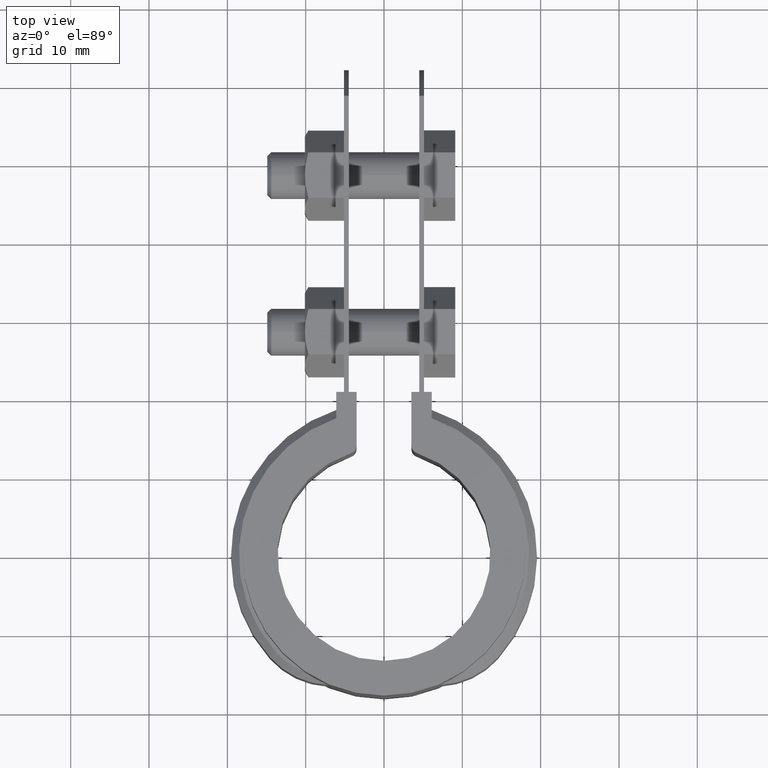
[diagram: clean part render]
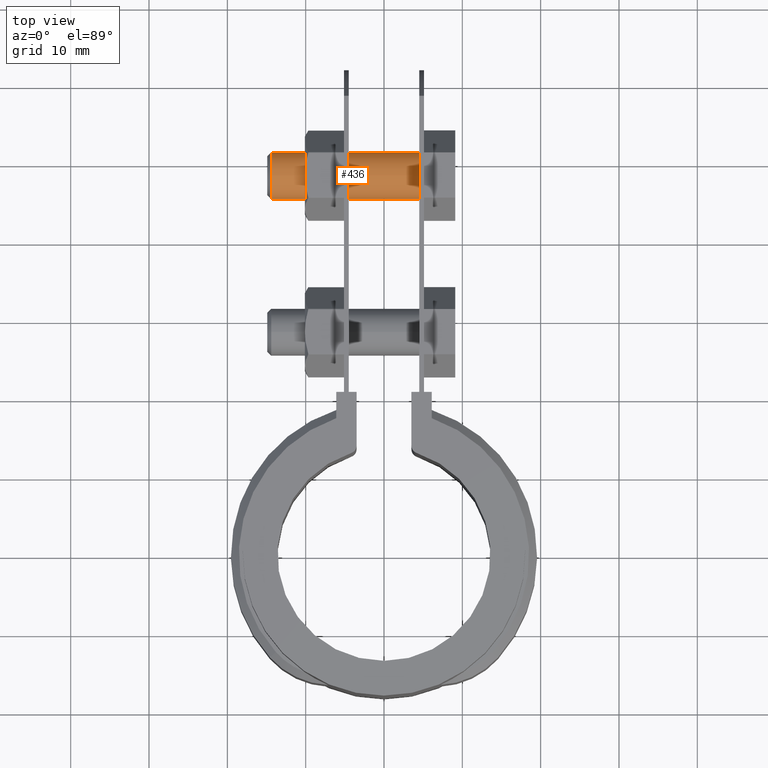
[diagram: same view with one face highlighted and labeled with its STEP entity id]
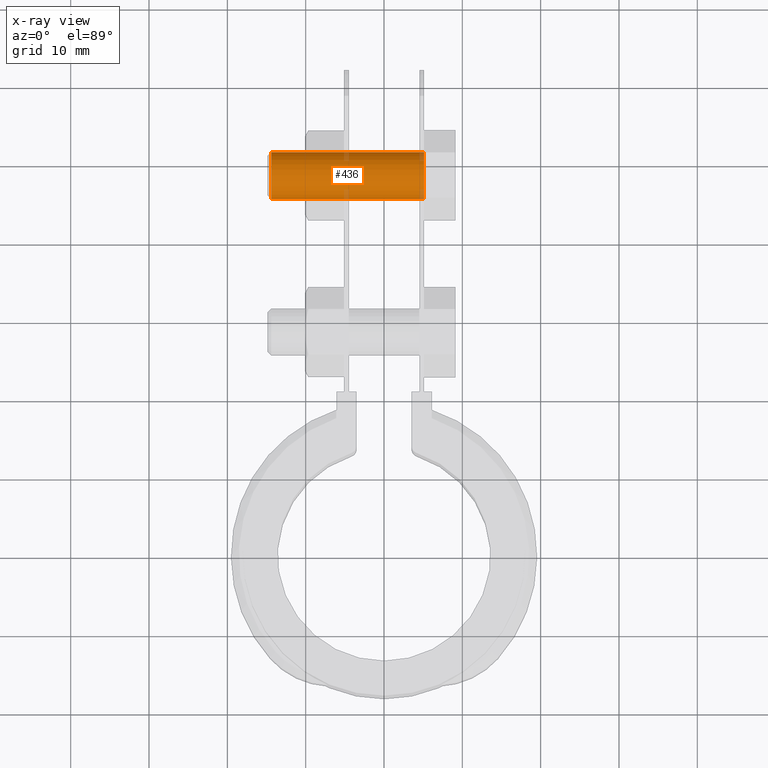
[diagram: x-ray of the same camera — body ghosted, the highlighted face saturated]
A machine part, top view. The second image highlights one B-rep face of the part: STEP entity #436.
The next image is the same camera in x-ray: the body ghosted, the highlighted face saturated — about 2% of this face is hidden behind the body in this view.
In plain terms, the highlighted cylindrical surface (bore or boss wall) has radius 3 mm, axis along (1, 0, 0).
Its self-contained STEP definition (entity closure, byte-faithful):
#436 = ADVANCED_FACE( '', ( #759, #760 ), #761, .T. );
#759 = FACE_OUTER_BOUND( '', #1545, .T. );
#760 = FACE_OUTER_BOUND( '', #1546, .T. );
#761 = CYLINDRICAL_SURFACE( '', #1547, 2.99999999999938 );
#1545 = EDGE_LOOP( '', ( #3356 ) );
#1546 = EDGE_LOOP( '', ( #3357 ) );
#1547 = AXIS2_PLACEMENT_3D( '', #3358, #3359, #3360 );
#3356 = ORIENTED_EDGE( '', *, *, #4186, .T. );
#3357 = ORIENTED_EDGE( '', *, *, #4180, .F. );
#3358 = CARTESIAN_POINT( '', ( 13.5487843911323, 48.5992907623043, -12.5000000000000 ) );
#3359 = DIRECTION( '', ( 1.00000000000000, 3.39587965456385E-072, 0.000000000000000 ) );
#3360 = DIRECTION( '', ( 0.000000000000000, 0.000000000000000, 1.00000000000000 ) );
#4180 = EDGE_CURVE( '', #4910, #4910, #4911, .F. );
#4186 = EDGE_CURVE( '', #4920, #4920, #4921, .T. );
#4910 = VERTEX_POINT( '', #7276 );
#4911 = CIRCLE( '', #7277, 2.99999999999938 );
#4920 = VERTEX_POINT( '', #7291 );
#4921 = CIRCLE( '', #7292, 2.99999999999938 );
#7276 = CARTESIAN_POINT( '', ( 5.10000000000000, 48.5992907623043, -9.50000000000062 ) );
#7277 = AXIS2_PLACEMENT_3D( '', #8118, #8119, #8120 );
#7291 = CARTESIAN_POINT( '', ( -14.3999999999920, 48.5992907623043, -15.4999999999994 ) );
#7292 = AXIS2_PLACEMENT_3D( '', #8126, #8127, #8128 );
#8118 = CARTESIAN_POINT( '', ( 5.10000000000000, 48.5992907623043, -12.5000000000000 ) );
#8119 = DIRECTION( '', ( -1.00000000000000, -3.39587965456385E-072, 0.000000000000000 ) );
#8120 = DIRECTION( '', ( 0.000000000000000, 0.000000000000000, 1.00000000000000 ) );
#8126 = CARTESIAN_POINT( '', ( -14.3999999999920, 48.5992907623043, -12.5000000000000 ) );
#8127 = DIRECTION( '', ( 1.00000000000000, 3.39587965456385E-072, 0.000000000000000 ) );
#8128 = DIRECTION( '', ( 0.000000000000000, 0.000000000000000, -1.00000000000000 ) );